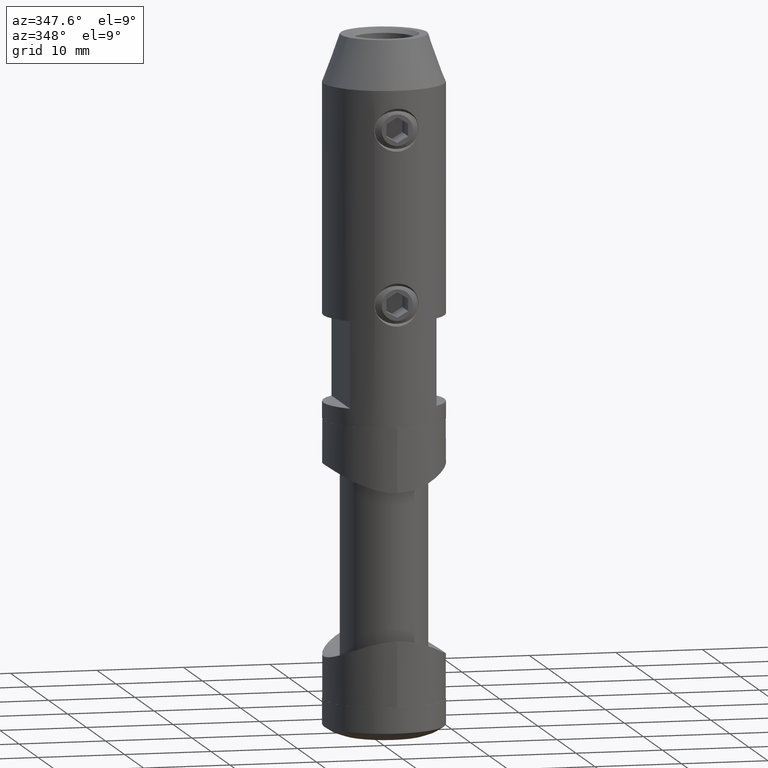
[diagram: clean part render]
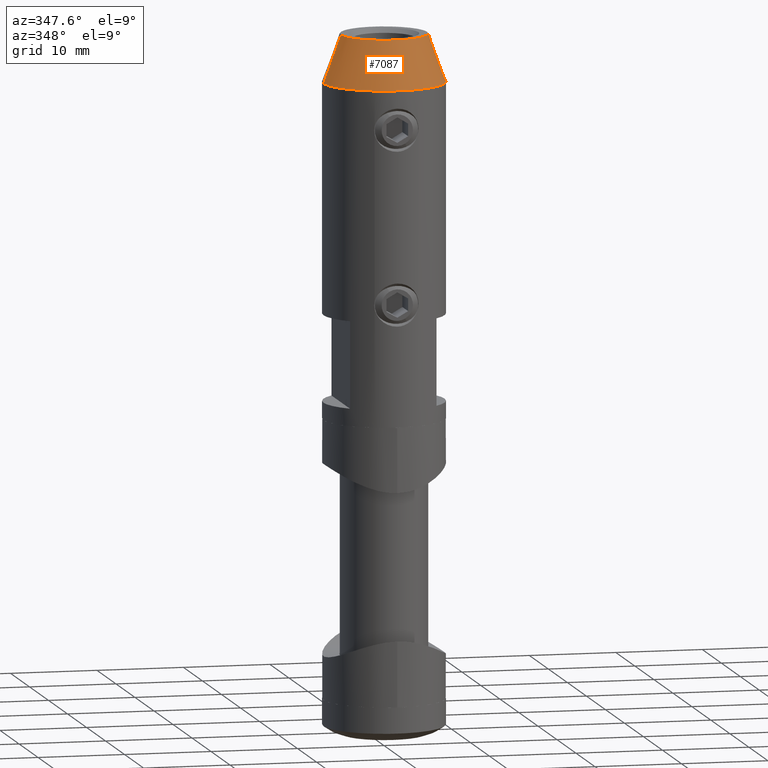
[diagram: same view with one face highlighted and labeled with its STEP entity id]
A machine part, auxiliary view. The second image highlights one B-rep face of the part: STEP entity #7087.
In plain terms, the highlighted conical surface has half-angle 19.983 deg.
Its self-contained STEP definition (entity closure, byte-faithful):
#343 = EDGE_CURVE ( 'NONE', #8261, #8582, #16101, .T. ) ;
#406 = CARTESIAN_POINT ( 'NONE',  ( 0.000000000000000000, 0.000000000000000000, 22.00000000000000000 ) ) ;
#712 = VECTOR ( 'NONE', #14127, 999.9999999999998863 ) ;
#1005 = FACE_OUTER_BOUND ( 'NONE', #15724, .T. ) ;
#1338 = AXIS2_PLACEMENT_3D ( 'NONE', #406, #4807, #6462 ) ;
#1655 = DIRECTION ( 'NONE',  ( -0.3417430630867047681, 0.000000000000000000, -0.9397934234884369742 ) ) ;
#2807 = CARTESIAN_POINT ( 'NONE',  ( 6.999999999999999112, 0.000000000000000000, 16.50000000000000000 ) ) ;
#4072 = AXIS2_PLACEMENT_3D ( 'NONE', #12311, #12036, #9092 ) ;
#4391 = EDGE_CURVE ( 'NONE', #12406, #13676, #8620, .T. ) ;
#4757 = ORIENTED_EDGE ( 'NONE', *, *, #6051, .T. ) ;
#4807 = DIRECTION ( 'NONE',  ( -0.000000000000000000, -0.000000000000000000, -1.000000000000000000 ) ) ;
#5077 = DIRECTION ( 'NONE',  ( -1.000000000000000000, 0.000000000000000000, 0.000000000000000000 ) ) ;
#5151 = CARTESIAN_POINT ( 'NONE',  ( 0.000000000000000000, 0.000000000000000000, 22.00000000000000000 ) ) ;
#5292 = CARTESIAN_POINT ( 'NONE',  ( -4.999999999999997335, 0.000000000000000000, 22.00000000000000000 ) ) ;
#5794 = ORIENTED_EDGE ( 'NONE', *, *, #8570, .F. ) ;
#6029 = AXIS2_PLACEMENT_3D ( 'NONE', #5151, #16115, #5077 ) ;
#6051 = EDGE_CURVE ( 'NONE', #8261, #12406, #11748, .T. ) ;
#6462 = DIRECTION ( 'NONE',  ( -1.000000000000000000, 0.000000000000000000, 0.000000000000000000 ) ) ;
#7087 = ADVANCED_FACE ( 'NONE', ( #1005 ), #14162, .T. ) ;
#8261 = VERTEX_POINT ( 'NONE', #18670 ) ;
#8570 = EDGE_CURVE ( 'NONE', #8582, #13676, #10003, .T. ) ;
#8582 = VERTEX_POINT ( 'NONE', #2807 ) ;
#8620 = LINE ( 'NONE', #18911, #16168 ) ;
#9092 = DIRECTION ( 'NONE',  ( -1.000000000000000000, 0.000000000000000000, 0.000000000000000000 ) ) ;
#10003 = CIRCLE ( 'NONE', #4072, 6.999999999999999112 ) ;
#11748 = CIRCLE ( 'NONE', #1338, 4.999999999999997335 ) ;
#12036 = DIRECTION ( 'NONE',  ( -0.000000000000000000, -0.000000000000000000, -1.000000000000000000 ) ) ;
#12311 = CARTESIAN_POINT ( 'NONE',  ( 0.000000000000000000, 0.000000000000000000, 16.50000000000000000 ) ) ;
#12406 = VERTEX_POINT ( 'NONE', #5292 ) ;
#12828 = CARTESIAN_POINT ( 'NONE',  ( 4.999999999999997335, 6.123233995736763324E-16, 22.00000000000000000 ) ) ;
#13676 = VERTEX_POINT ( 'NONE', #13885 ) ;
#13885 = CARTESIAN_POINT ( 'NONE',  ( -6.999999999999999112, 8.572527594031472204E-16, 16.50000000000000000 ) ) ;
#14127 = DIRECTION ( 'NONE',  ( 0.3417430630867047681, 4.185145483399450380E-17, -0.9397934234884369742 ) ) ;
#14162 = CONICAL_SURFACE ( 'NONE', #6029, 4.999999999999997335, 0.3487710035839073908 ) ;
#15247 = ORIENTED_EDGE ( 'NONE', *, *, #343, .F. ) ;
#15724 = EDGE_LOOP ( 'NONE', ( #15247, #4757, #17415, #5794 ) ) ;
#16101 = LINE ( 'NONE', #12828, #712 ) ;
#16115 = DIRECTION ( 'NONE',  ( -0.000000000000000000, -0.000000000000000000, -1.000000000000000000 ) ) ;
#16168 = VECTOR ( 'NONE', #1655, 999.9999999999998863 ) ;
#17415 = ORIENTED_EDGE ( 'NONE', *, *, #4391, .T. ) ;
#18670 = CARTESIAN_POINT ( 'NONE',  ( 4.999999999999997335, 7.347880794884117764E-16, 22.00000000000000000 ) ) ;
#18911 = CARTESIAN_POINT ( 'NONE',  ( -4.999999999999997335, 0.000000000000000000, 22.00000000000000000 ) ) ;